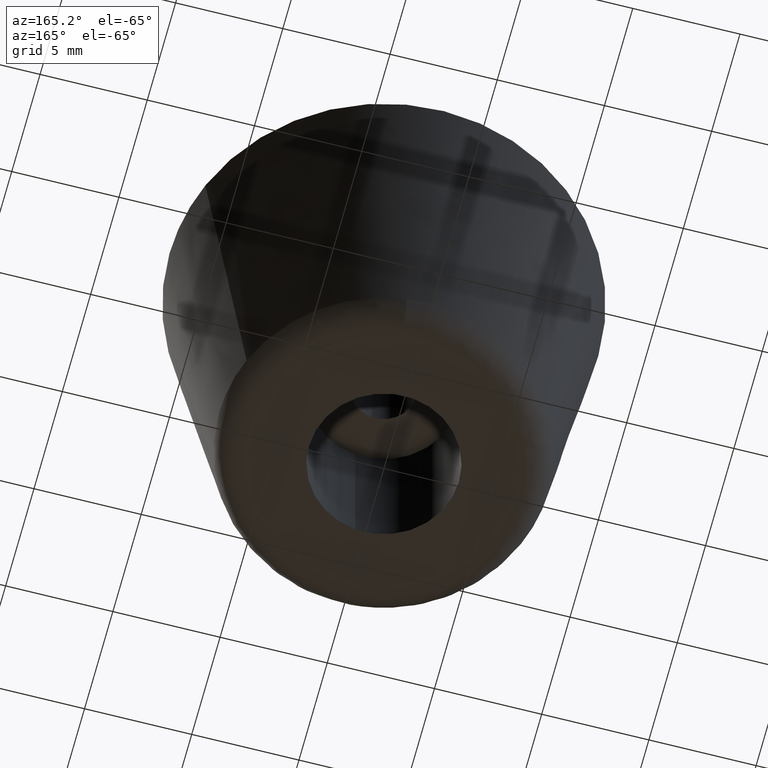
[diagram: clean part render]
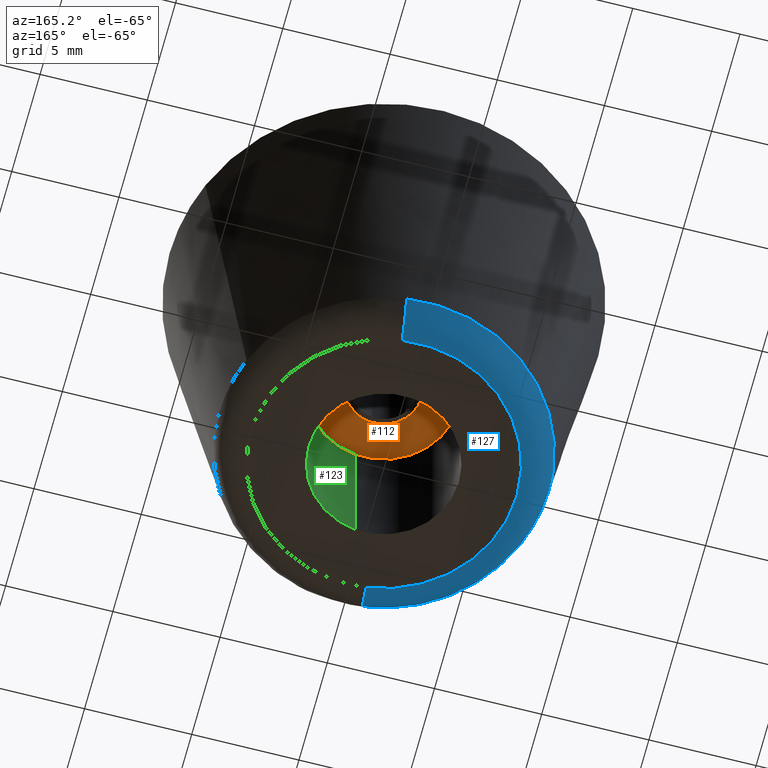
[diagram: same view with three faces highlighted in distinct colors, each labeled with its STEP entity id]
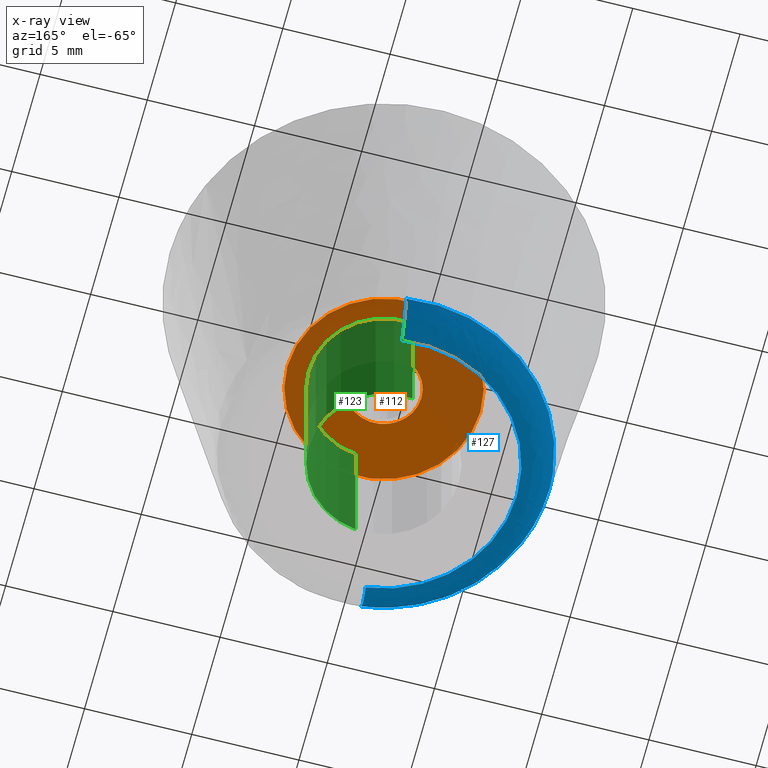
[diagram: x-ray of the same camera — body ghosted, the three highlighted faces saturated]
A machine part, auxiliary view with three faces highlighted in distinct colors.
The next image is the same camera in x-ray (body ghosted, the three faces saturated) — at least one of them is partly hidden behind the body in this view.
Their STEP definitions:

[orange] entity #112 — the highlighted planar face has unit normal (0, 0, 1).
#112=ADVANCED_FACE('',(#136,#137),#135,.F.);
#135=PLANE('',#375);
#136=FACE_OUTER_BOUND('',#376,.T.);
#137=FACE_BOUND('',#377,.T.);
#372=CARTESIAN_POINT('',(-5.84999999999E+000,-9.35307436086E+000,8.00000000000E+000));
#373=DIRECTION('',(0.00000000000E+000,0.00000000000E+000,1.00000000000E+000));
#374=DIRECTION('',(1.00000000000E+000,0.00000000000E+000,0.00000000000E+000));
#375=AXIS2_PLACEMENT_3D('',#372,#373,#374);
#376=EDGE_LOOP('',(#548,#549,#550));
#377=EDGE_LOOP('',(#551,#552,#553));
#548=ORIENTED_EDGE('',*,*,#684,.T.);
#549=ORIENTED_EDGE('',*,*,#685,.T.);
#550=ORIENTED_EDGE('',*,*,#686,.T.);
#551=ORIENTED_EDGE('',*,*,#687,.F.);
#552=ORIENTED_EDGE('',*,*,#688,.F.);
#553=ORIENTED_EDGE('',*,*,#689,.F.);
#684=EDGE_CURVE('',#752,#753,#754,.T.);
#685=EDGE_CURVE('',#753,#760,#761,.T.);
#686=EDGE_CURVE('',#760,#752,#767,.T.);
#687=EDGE_CURVE('',#773,#774,#775,.T.);
#688=EDGE_CURVE('',#781,#773,#782,.T.);
#689=EDGE_CURVE('',#774,#781,#788,.T.);
#752=VERTEX_POINT('',#1212);
#753=VERTEX_POINT('',#1213);
#754=CIRCLE('',#1217,4.49999999999E+000);
#760=VERTEX_POINT('',#1218);
#761=CIRCLE('',#1222,4.49999999999E+000);
#767=CIRCLE('',#1226,4.49999999999E+000);
#773=VERTEX_POINT('',#1227);
#774=VERTEX_POINT('',#1228);
#775=CIRCLE('',#1232,1.75000000000E+000);
#781=VERTEX_POINT('',#1233);
#782=CIRCLE('',#1237,1.75000000000E+000);
#788=CIRCLE('',#1241,1.75000000000E+000);
#1212=CARTESIAN_POINT('',(-4.49999999999E+000,-2.88657986403E-015,8.00000000001E+000));
#1213=CARTESIAN_POINT('',(-5.31924016203E-001,4.46845127991E+000,8.00000000000E+000));
#1214=CARTESIAN_POINT('',(6.67133015497E-012,3.03046476802E-012,8.00000000000E+000));
#1215=DIRECTION('',(-1.07880753917E-012,-1.60430598196E-013,-1.00000000000E+000));
#1216=DIRECTION('',(-1.00000000000E+000,-6.73738842494E-013,1.07880753917E-012));
#1217=AXIS2_PLACEMENT_3D('',#1214,#1215,#1216);
#1218=CARTESIAN_POINT('',(5.31151701545E-001,-4.46854314848E+000,8.00000000000E+000));
#1219=CARTESIAN_POINT('',(6.67133015497E-012,3.03046476802E-012,8.00000000000E+000));
#1220=DIRECTION('',(-1.07880753917E-012,-1.60430598196E-013,-1.00000000000E+000));
#1221=DIRECTION('',(-1.00000000000E+000,-6.73738842494E-013,1.07880753917E-012));
#1222=AXIS2_PLACEMENT_3D('',#1219,#1220,#1221);
#1223=CARTESIAN_POINT('',(6.67133015497E-012,3.03046476802E-012,8.00000000000E+000));
#1224=DIRECTION('',(-1.07880753917E-012,-1.60430598196E-013,-1.00000000000E+000));
#1225=DIRECTION('',(-1.00000000000E+000,-6.73738842494E-013,1.07880753917E-012));
#1226=AXIS2_PLACEMENT_3D('',#1223,#1224,#1225);
#1227=CARTESIAN_POINT('',(2.06559275158E-001,-1.73776674667E+000,8.00000000000E+000));
#1228=CARTESIAN_POINT('',(-1.75000000000E+000,-8.60422844084E-016,8.00000000000E+000));
#1229=CARTESIAN_POINT('',(5.63882274207E-013,2.55684362571E-013,8.00000000000E+000));
#1230=DIRECTION('',(-4.23175080899E-013,-6.41002814311E-014,-1.00000000000E+000));
#1231=DIRECTION('',(-1.00000000000E+000,-1.46244127919E-013,4.23175080899E-013));
#1232=AXIS2_PLACEMENT_3D('',#1229,#1230,#1231);
#1233=CARTESIAN_POINT('',(-2.06860317405E-001,1.73773093691E+000,8.00000000000E+000));
#1234=CARTESIAN_POINT('',(5.63882274207E-013,2.55684362571E-013,8.00000000000E+000));
#1235=DIRECTION('',(-4.23175080899E-013,-6.41002814311E-014,-1.00000000000E+000));
#1236=DIRECTION('',(-1.00000000000E+000,-1.46244127919E-013,4.23175080899E-013));
#1237=AXIS2_PLACEMENT_3D('',#1234,#1235,#1236);
#1238=CARTESIAN_POINT('',(5.63882274207E-013,2.55684362571E-013,8.00000000000E+000));
#1239=DIRECTION('',(-4.23175080899E-013,-6.41002814311E-014,-1.00000000000E+000));
#1240=DIRECTION('',(-1.00000000000E+000,-1.46244127919E-013,4.23175080899E-013));
#1241=AXIS2_PLACEMENT_3D('',#1238,#1239,#1240);

[blue] entity #127 — the highlighted face is a freeform B-spline surface patch.
#127=ADVANCED_FACE('',(#293),#292,.T.);
#292=( BOUNDED_SURFACE() B_SPLINE_SURFACE( 2,2,((#466,#467,#468,#469,#470),(#471,#472,#473,#474,#475),(#476,#477,#478,#479,#480),(#481,#482,#483,#484,#485),(#486,#487,#488,#489,#490)), .UNSPECIFIED.,.F.,.F.,.F.) B_SPLINE_SURFACE_WITH_KNOTS((3,2,3),(3,2,3),(0.00000000000E+000,5.00000000000E-001,1.00000000000E+000),(0.00000000000E+000,5.00000000000E-001,1.00000000000E+000), .UNSPECIFIED. ) GEOMETRIC_REPRESENTATION_ITEM() RATIONAL_B_SPLINE_SURFACE(((1.00000000000E+000,7.56800502114E-001,1.00000000000E+000,7.56800502114E-001,1.00000000000E+000),(7.07106781187E-001,5.35138767050E-001,7.07106781187E-001,5.35138767050E-001,7.07106781187E-001),(1.00000000000E+000,7.56800502114E-001,1.00000000000E+000,7.56800502114E-001,1.00000000000E+000),(7.07106781187E-001,5.35138767050E-001,7.07106781187E-001,5.35138767050E-001,7.07106781187E-001),(1.00000000000E+000,7.56800502114E-001,1.00000000000E+000,7.56800502114E-001,1.00000000000E+000))) REPRESENTATION_ITEM('') SURFACE() );
#293=FACE_OUTER_BOUND('',#491,.T.);
#466=CARTESIAN_POINT('',(-9.63623776779E-001,-7.62786763168E+000,1.28175900000E+000));
#467=CARTESIAN_POINT('',(-9.39999216361E-001,-7.44085997987E+000,5.86798249485E-016));
#468=CARTESIAN_POINT('',(-7.77624407654E-001,-6.15553101914E+000,2.22044604925E-016));
#469=CARTESIAN_POINT('',(-6.15249598948E-001,-4.87020205842E+000,-2.93399124743E-016));
#470=CARTESIAN_POINT('',(-5.91625038530E-001,-4.68319440661E+000,1.28175900000E+000));
#471=CARTESIAN_POINT('',(-8.59149140846E+000,-6.66424385490E+000,1.28175900000E+000));
#472=CARTESIAN_POINT('',(-8.38085919623E+000,-6.50086076350E+000,1.71869228086E-016));
#473=CARTESIAN_POINT('',(-6.93315542680E+000,-5.37790661149E+000,-3.14018491737E-016));
#474=CARTESIAN_POINT('',(-5.48545165737E+000,-4.25495245948E+000,-7.08328146142E-016));
#475=CARTESIAN_POINT('',(-5.27481944514E+000,-4.09156936808E+000,1.28175900000E+000));
#476=CARTESIAN_POINT('',(-7.62786763168E+000,9.63623776779E-001,1.28175900000E+000));
#477=CARTESIAN_POINT('',(-7.44085997987E+000,9.39999216361E-001,0.00000000000E+000));
#478=CARTESIAN_POINT('',(-6.15553101914E+000,7.77624407654E-001,-4.44089209850E-016));
#479=CARTESIAN_POINT('',(-4.87020205842E+000,6.15249598948E-001,-8.80197374228E-016));
#480=CARTESIAN_POINT('',(-4.68319440661E+000,5.91625038530E-001,1.28175900000E+000));
#481=CARTESIAN_POINT('',(-6.66424385490E+000,8.59149140846E+000,1.28175900000E+000));
#482=CARTESIAN_POINT('',(-6.50086076350E+000,8.38085919623E+000,-2.43059793314E-016));
#483=CARTESIAN_POINT('',(-5.37790661149E+000,6.93315542680E+000,-4.05992378548E-016));
#484=CARTESIAN_POINT('',(-4.25495245948E+000,5.48545165737E+000,-7.08328146142E-016));
#485=CARTESIAN_POINT('',(-4.09156936808E+000,5.27481944514E+000,1.28175900000E+000));
#486=CARTESIAN_POINT('',(9.63623776779E-001,7.62786763168E+000,1.28175900000E+000));
#487=CARTESIAN_POINT('',(9.39999216361E-001,7.44085997987E+000,2.93399124743E-016));
#488=CARTESIAN_POINT('',(7.77624407654E-001,6.15553101914E+000,0.00000000000E+000));
#489=CARTESIAN_POINT('',(6.15249598948E-001,4.87020205842E+000,-5.86798249485E-016));
#490=CARTESIAN_POINT('',(5.91625038530E-001,4.68319440661E+000,1.28175900000E+000));
#491=EDGE_LOOP('',(#639,#640,#641,#642,#643,#644,#645,#646));
#639=ORIENTED_EDGE('',*,*,#700,.F.);
#640=ORIENTED_EDGE('',*,*,#702,.F.);
#641=ORIENTED_EDGE('',*,*,#744,.F.);
#642=ORIENTED_EDGE('',*,*,#740,.T.);
#643=ORIENTED_EDGE('',*,*,#738,.T.);
#644=ORIENTED_EDGE('',*,*,#737,.T.);
#645=ORIENTED_EDGE('',*,*,#736,.T.);
#646=ORIENTED_EDGE('',*,*,#745,.T.);
#700=EDGE_CURVE('',#860,#861,#862,.T.);
#702=EDGE_CURVE('',#868,#860,#875,.T.);
#736=EDGE_CURVE('',#1110,#1103,#1111,.T.);
#737=EDGE_CURVE('',#1117,#1110,#1118,.T.);
#738=EDGE_CURVE('',#1124,#1117,#1125,.T.);
#740=EDGE_CURVE('',#1137,#1124,#1138,.T.);
#744=EDGE_CURVE('',#1137,#868,#1164,.T.);
#745=EDGE_CURVE('',#1103,#861,#1170,.T.);
#860=VERTEX_POINT('',#1280);
#861=VERTEX_POINT('',#1281);
#862=CIRCLE('',#1285,6.20445500033E+000);
#868=VERTEX_POINT('',#1286);
#875=CIRCLE('',#1294,6.20445500033E+000);
#1103=VERTEX_POINT('',#1447);
#1110=VERTEX_POINT('',#1452);
#1111=CIRCLE('',#1456,7.68849351280E+000);
#1117=VERTEX_POINT('',#1457);
#1118=CIRCLE('',#1461,7.68849369598E+000);
#1124=VERTEX_POINT('',#1462);
#1125=CIRCLE('',#1466,7.68849351872E+000);
#1137=VERTEX_POINT('',#1469);
#1138=CIRCLE('',#1473,7.68849320486E+000);
#1164=(BOUNDED_CURVE() B_SPLINE_CURVE(2,(#1488,#1489,#1490),.UNSPECIFIED.,.F.,.F.) B_SPLINE_CURVE_WITH_KNOTS((3,3),(7.05322629834E-007,5.00000000000E-001),.UNSPECIFIED.) CURVE() GEOMETRIC_REPRESENTATION_ITEM() RATIONAL_B_SPLINE_CURVE((1.00000000000E+000,7.56800502114E-001,1.00000000000E+000)) REPRESENTATION_ITEM('') );
#1170=(BOUNDED_CURVE() B_SPLINE_CURVE(3,(#1491,#1492,#1493,#1494,#1495),.UNSPECIFIED.,.F.,.F.) B_SPLINE_CURVE_WITH_KNOTS((4,1,4),(0.00000000000E+000,2.50000142440E-001,5.00000253196E-001),.UNSPECIFIED.) CURVE() GEOMETRIC_REPRESENTATION_ITEM() RATIONAL_B_SPLINE_CURVE((1.00000000000E+000,1.00000000000E+000,1.00000000000E+000,1.00000000000E+000,1.00000000000E+000)) REPRESENTATION_ITEM('') );
#1280=CARTESIAN_POINT('',(-6.20445500065E+000,-6.66133814775E-016,5.67362130442E-016));
#1281=CARTESIAN_POINT('',(7.77781383784E-001,6.15551118664E+000,2.48119222716E-016));
#1282=CARTESIAN_POINT('',(-3.26632942915E-010,-6.01976246628E-011,2.83681065221E-016));
#1283=DIRECTION('',(-4.57221569350E-017,1.22144315356E-033,-1.00000000000E+000));
#1284=DIRECTION('',(-1.00000000000E+000,9.70258595689E-012,4.57221569350E-017));
#1285=AXIS2_PLACEMENT_3D('',#1282,#1283,#1284);
#1286=CARTESIAN_POINT('',(-7.77624407708E-001,-6.15553101957E+000,3.19235730412E-016));
#1291=CARTESIAN_POINT('',(-3.26632942915E-010,-6.01976246628E-011,2.83681065221E-016));
#1292=DIRECTION('',(-4.57221569350E-017,1.22144315356E-033,-1.00000000000E+000));
#1293=DIRECTION('',(-1.00000000000E+000,9.70258595689E-012,4.57221569350E-017));
#1294=AXIS2_PLACEMENT_3D('',#1291,#1292,#1293);
#1447=CARTESIAN_POINT('',(9.63618329727E-001,7.62786835106E+000,1.28175819417E+000));
#1452=CARTESIAN_POINT('',(-7.62786838961E+000,9.63617749231E-001,1.28175795950E+000));
#1453=CARTESIAN_POINT('',(-1.55732659213E-007,2.40583988287E-007,1.28175807684E+000));
#1454=DIRECTION('',(1.70534336726E-008,1.32280192451E-008,-1.00000000000E+000));
#1455=DIRECTION('',(9.92114803918E-001,-1.25332421370E-001,1.52610643224E-008));
#1456=AXIS2_PLACEMENT_3D('',#1453,#1454,#1455);
#1457=CARTESIAN_POINT('',(-7.68849400000E+000,0.00000000000E+000,1.28175900000E+000));
#1458=CARTESIAN_POINT('',(-3.04025138398E-007,-2.39479028979E-006,1.28175847975E+000));
#1459=DIRECTION('',(-6.76658942420E-008,-1.07552531378E-006,-9.99999999999E-001));
#1460=DIRECTION('',(1.00000000000E+000,-3.11477174137E-007,-6.76655592404E-008));
#1461=AXIS2_PLACEMENT_3D('',#1458,#1459,#1460);
#1462=CARTESIAN_POINT('',(-7.14925830686E+000,-2.82861066392E+000,1.28175574448E+000));
#1463=CARTESIAN_POINT('',(-4.81280539866E-007,1.20956092520E-006,1.28175737224E+000));
#1464=DIRECTION('',(-2.11713791595E-007,1.11056525283E-006,-9.99999999999E-001));
#1465=DIRECTION('',(9.29864583767E-001,3.67901965007E-001,2.11713982085E-007));
#1466=AXIS2_PLACEMENT_3D('',#1463,#1464,#1465);
#1469=CARTESIAN_POINT('',(-9.63623768233E-001,-7.62786756403E+000,1.28175619139E+000));
#1470=CARTESIAN_POINT('',(-1.78525520589E-007,-4.08758118020E-007,1.28175600664E+000));
#1471=DIRECTION('',(4.86859240866E-008,-3.03714289667E-008,-1.00000000000E+000));
#1472=DIRECTION('',(-7.84582060793E-002,9.96917403750E-001,-3.40976163788E-008));
#1473=AXIS2_PLACEMENT_3D('',#1470,#1471,#1472);
#1488=CARTESIAN_POINT('',(-9.63623776779E-001,-7.62786763168E+000,1.28175900000E+000));
#1489=CARTESIAN_POINT('',(-9.39999216361E-001,-7.44085997987E+000,5.86798249485E-016));
#1490=CARTESIAN_POINT('',(-7.77624407654E-001,-6.15553101914E+000,2.22044604925E-016));
#1491=CARTESIAN_POINT('',(9.63623776779E-001,7.62786763168E+000,1.28175900000E+000));
#1492=CARTESIAN_POINT('',(9.57455839667E-001,7.57904338202E+000,9.31706524877E-001));
#1493=CARTESIAN_POINT('',(9.11327452887E-001,7.21389960195E+000,2.64865614114E-001));
#1494=CARTESIAN_POINT('',(8.21928034939E-001,6.50623034047E+000,-2.24212527043E-003));
#1495=CARTESIAN_POINT('',(7.77624283198E-001,6.15553003397E+000,3.28758039029E-013));

[green] entity #123 — the highlighted cylindrical surface (partial cylindrical patch) has radius 3.5 mm, axis along (0, 0, 1).
#123=ADVANCED_FACE('',(#253),#252,.F.);
#252=CYLINDRICAL_SURFACE('',#437,3.50000000000E+000);
#253=FACE_OUTER_BOUND('',#438,.T.);
#434=CARTESIAN_POINT('',(1.54929974402E-014,2.13336244172E-015,8.20000000000E+000));
#435=DIRECTION('',(3.87484386562E-015,4.60583929913E-016,1.00000000000E+000));
#436=DIRECTION('',(1.18034234657E-001,-9.93009526364E-001,-1.83410160464E-029));
#437=AXIS2_PLACEMENT_3D('',#434,#435,#436);
#438=EDGE_LOOP('',(#612,#613,#614,#615));
#612=ORIENTED_EDGE('',*,*,#704,.T.);
#613=ORIENTED_EDGE('',*,*,#732,.T.);
#614=ORIENTED_EDGE('',*,*,#718,.F.);
#615=ORIENTED_EDGE('',*,*,#733,.F.);
#704=EDGE_CURVE('',#889,#881,#890,.T.);
#718=EDGE_CURVE('',#980,#987,#988,.T.);
#732=EDGE_CURVE('',#881,#987,#1084,.T.);
#733=EDGE_CURVE('',#889,#980,#1090,.T.);
#881=VERTEX_POINT('',#1295);
#889=VERTEX_POINT('',#1301);
#890=CIRCLE('',#1305,3.49999999999E+000);
#980=VERTEX_POINT('',#1366);
#987=VERTEX_POINT('',#1371);
#988=CIRCLE('',#1375,3.50000000001E+000);
#1084=(BOUNDED_CURVE() B_SPLINE_CURVE(1,(#1440,#1441),.UNSPECIFIED.,.F.,.F.) B_SPLINE_CURVE_WITH_KNOTS((2,2),(8.33333366442E-002,9.16666667899E-001),.UNSPECIFIED.) CURVE() GEOMETRIC_REPRESENTATION_ITEM() RATIONAL_B_SPLINE_CURVE((1.00000000000E+000,1.00000000000E+000)) REPRESENTATION_ITEM('') );
#1090=(BOUNDED_CURVE() B_SPLINE_CURVE(1,(#1442,#1443),.UNSPECIFIED.,.F.,.F.) B_SPLINE_CURVE_WITH_KNOTS((2,2),(8.33333333334E-002,9.16666666667E-001),.UNSPECIFIED.) CURVE() GEOMETRIC_REPRESENTATION_ITEM() RATIONAL_B_SPLINE_CURVE((7.50000000000E-001,7.50000000000E-001)) REPRESENTATION_ITEM('') );
#1295=CARTESIAN_POINT('',(4.13118550315E-001,-3.47553349334E+000,-4.45407513231E-014));
#1301=CARTESIAN_POINT('',(-4.13720514207E-001,3.47546188817E+000,-2.23409580176E-014));
#1302=CARTESIAN_POINT('',(7.59614593449E-012,3.45123929435E-012,-3.34082818037E-014));
#1303=DIRECTION('',(1.06337441072E-013,1.58428739427E-014,-1.00000000000E+000));
#1304=DIRECTION('',(-1.00000000000E+000,-9.85489467809E-013,-1.06337441072E-013));
#1305=AXIS2_PLACEMENT_3D('',#1302,#1303,#1304);
#1366=CARTESIAN_POINT('',(-4.13720514208E-001,3.47546188819E+000,8.00000000000E+000));
#1371=CARTESIAN_POINT('',(4.13118550316E-001,-3.47553349335E+000,8.00000000000E+000));
#1372=CARTESIAN_POINT('',(-7.87903076116E-012,7.41162686779E-012,8.00000000000E+000));
#1373=DIRECTION('',(-1.26882631385E-015,1.13838550100E-031,-1.00000000000E+000));
#1374=DIRECTION('',(-1.00000000000E+000,-2.11722702862E-012,1.26882631385E-015));
#1375=AXIS2_PLACEMENT_3D('',#1372,#1373,#1374);
#1440=CARTESIAN_POINT('',(4.13119821299E-001,-3.47553334227E+000,3.17838274588E-008));
#1441=CARTESIAN_POINT('',(4.13119821299E-001,-3.47553334227E+000,8.00000001183E+000));
#1442=CARTESIAN_POINT('',(-4.13119821299E-001,3.47553334227E+000,-1.54246985555E-013));
#1443=CARTESIAN_POINT('',(-4.13119821299E-001,3.47553334227E+000,8.00000000000E+000));